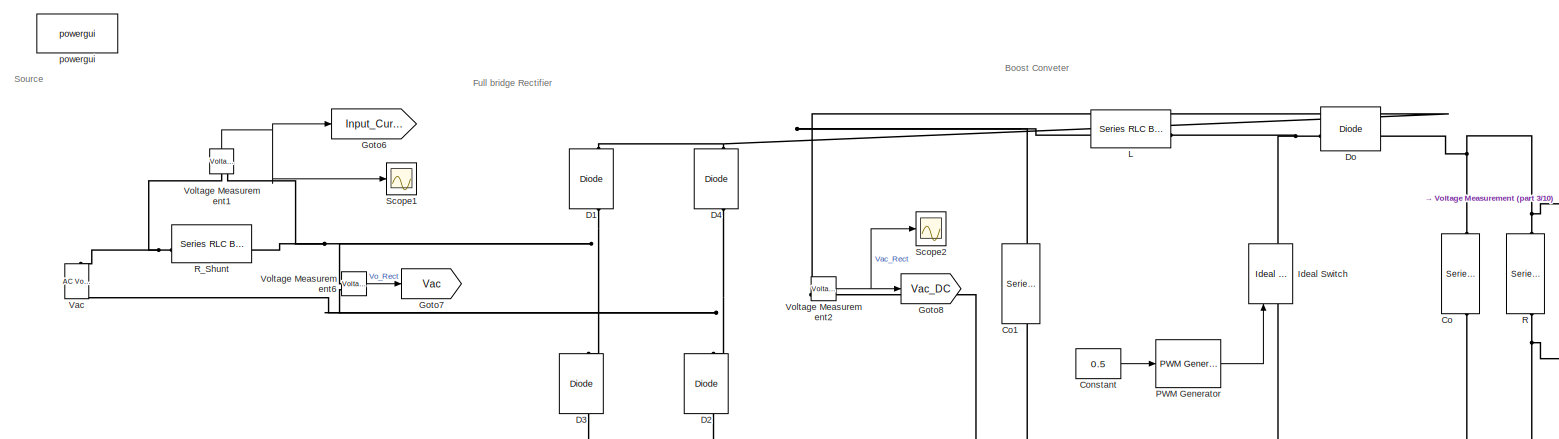
[diagram: root canvas - part 1/10, top left region]
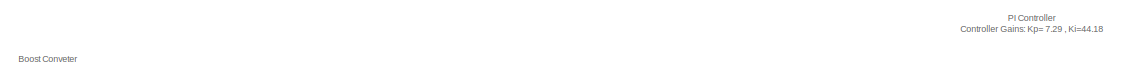
[diagram: root canvas - part 2/10, top center region]
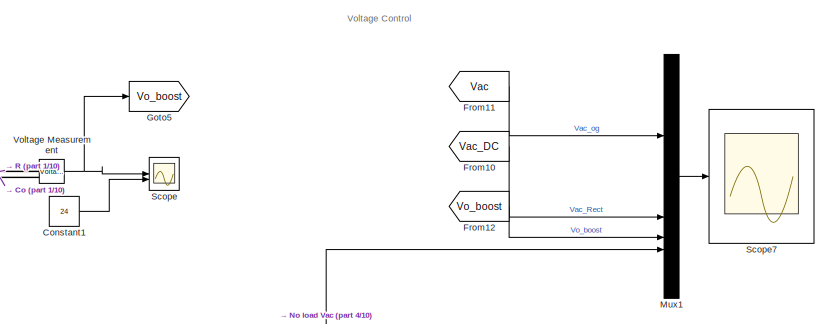
[diagram: root canvas - part 3/10, top center region]
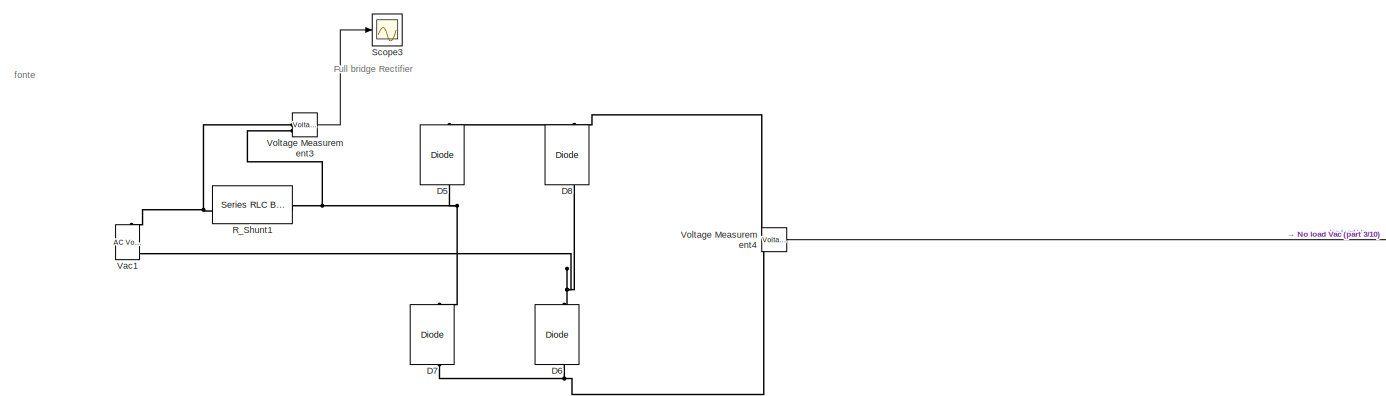
[diagram: root canvas - part 4/10, middle left region]
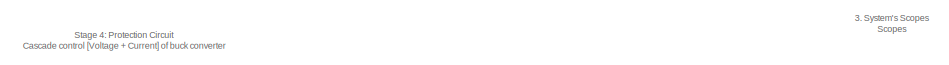
[diagram: root canvas - part 5/10, middle right region]
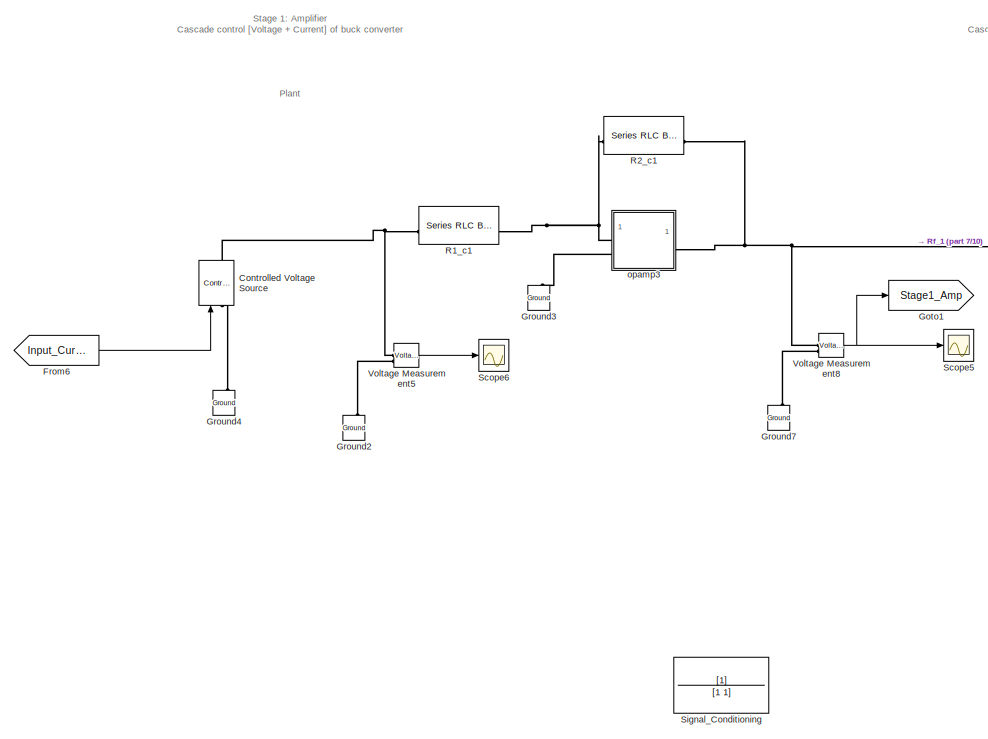
[diagram: root canvas - part 6/10, bottom left region]
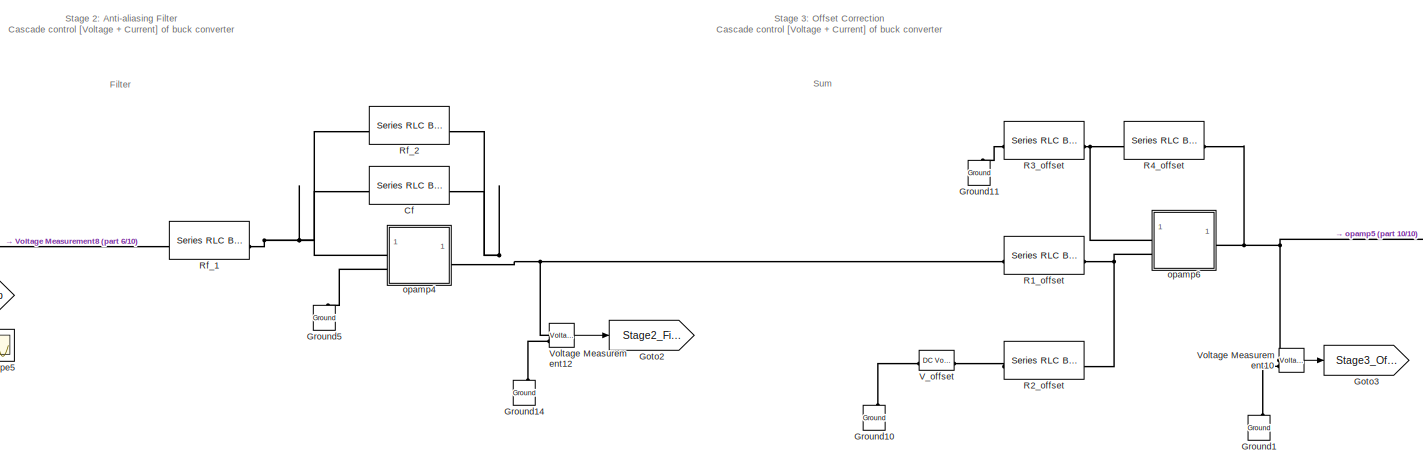
[diagram: root canvas - part 7/10, bottom center region]
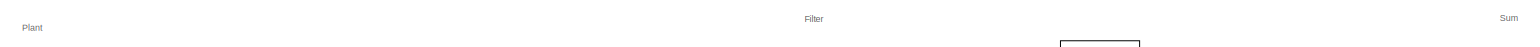
[diagram: root canvas - part 8/10, middle left region]
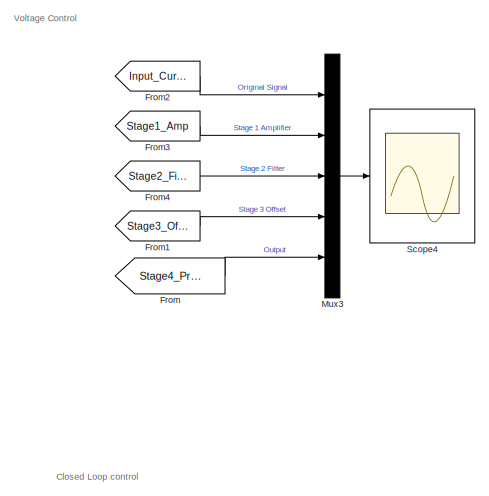
[diagram: root canvas - part 9/10, bottom right region]
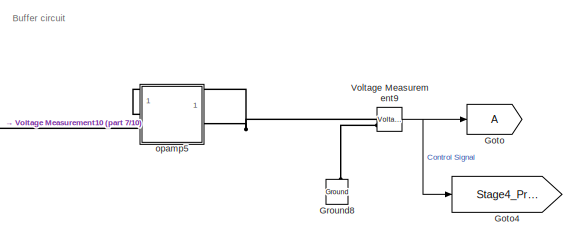
[diagram: root canvas - part 10/10, bottom right region]
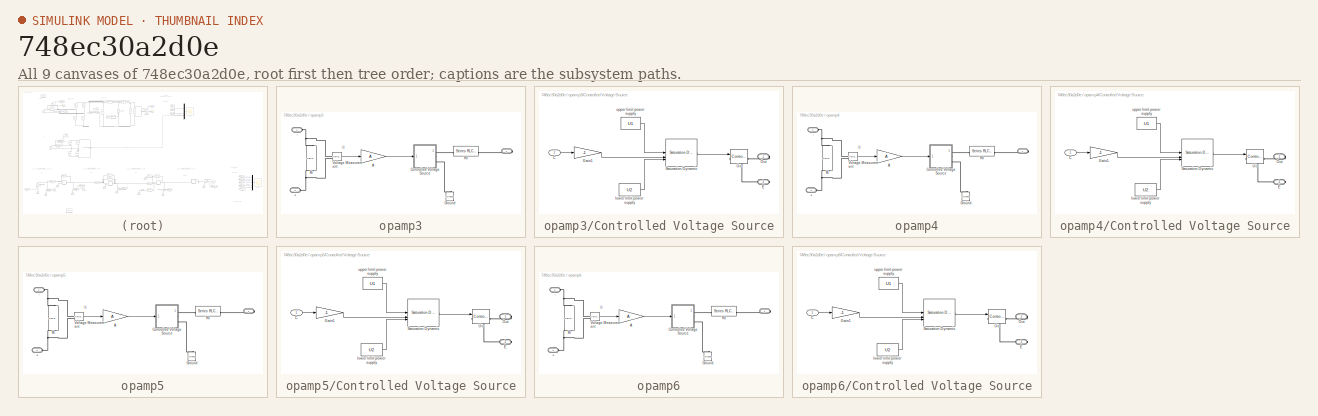
[diagram: thumbnail index - all 9 canvases of the model, root first then tree order]
MODEL slx_748ec30a2d0e
KIND model
CONFIG AbsTol = auto
CONFIG EnableMultiTasking = off
CONFIG FixedStep = 1e-6
CONFIG MaxStep = auto
CONFIG MinStep = auto
CONFIG RelTol = 1e-9
CONFIG SampleTimeConstraint = Unconstrained
CONFIG SolverName = FixedStepAuto
CONFIG StartTime = 0.0
CONFIG StopTime = 1
BLOCK [Reference] Cf  REF=spsSeriesRLCBranchLib/Series RLC Branch
  LibrarySourceBlock = sps_lib/Passives/Series RLC Branch
  SourceBlock = spsSeriesRLCBranchLib/Series RLC Branch
  SourceType = Series RLC Branch
BLOCK [Reference] Co  REF=spsSeriesRLCBranchLib/Series RLC Branch
  LibrarySourceBlock = sps_lib/Passives/Series RLC Branch
  NameLocation = left
  SourceBlock = spsSeriesRLCBranchLib/Series RLC Branch
  SourceType = Series RLC Branch
BLOCK [Reference] Co1  REF=spsSeriesRLCBranchLib/Series RLC Branch
  LibrarySourceBlock = sps_lib/Passives/Series RLC Branch
  NameLocation = left
  SourceBlock = spsSeriesRLCBranchLib/Series RLC Branch
  SourceType = Series RLC Branch
BLOCK [Constant] Constant
  Value = 0.5
BLOCK [Constant] Constant1
  Value = 24
BLOCK [Reference] Controlled Voltage Source  REF=spsControlledVoltageSourceLib/Controlled Voltage Source
  LibrarySourceBlock = sps_lib/Sources/Controlled Voltage Source
  SourceBlock = spsControlledVoltageSourceLib/Controlled Voltage Source
  SourceType = Controlled Voltage Source
BLOCK [Reference] D1  REF=spsDiodeLib/Diode
  LibrarySourceBlock = sps_lib/Power Electronics/Diode
  NameLocation = right
  SourceBlock = spsDiodeLib/Diode
  SourceType = Diode
BLOCK [Reference] D2  REF=spsDiodeLib/Diode
  LibrarySourceBlock = sps_lib/Power Electronics/Diode
  NameLocation = right
  SourceBlock = spsDiodeLib/Diode
  SourceType = Diode
BLOCK [Reference] D3  REF=spsDiodeLib/Diode
  LibrarySourceBlock = sps_lib/Power Electronics/Diode
  NameLocation = right
  SourceBlock = spsDiodeLib/Diode
  SourceType = Diode
BLOCK [Reference] D4  REF=spsDiodeLib/Diode
  LibrarySourceBlock = sps_lib/Power Electronics/Diode
  NameLocation = right
  SourceBlock = spsDiodeLib/Diode
  SourceType = Diode
BLOCK [Reference] D5  REF=spsDiodeLib/Diode
  LibrarySourceBlock = sps_lib/Power Electronics/Diode
  NameLocation = right
  SourceBlock = spsDiodeLib/Diode
  SourceType = Diode
BLOCK [Reference] D6  REF=spsDiodeLib/Diode
  LibrarySourceBlock = sps_lib/Power Electronics/Diode
  NameLocation = right
  SourceBlock = spsDiodeLib/Diode
  SourceType = Diode
BLOCK [Reference] D7  REF=spsDiodeLib/Diode
  LibrarySourceBlock = sps_lib/Power Electronics/Diode
  NameLocation = right
  SourceBlock = spsDiodeLib/Diode
  SourceType = Diode
BLOCK [Reference] D8  REF=spsDiodeLib/Diode
  LibrarySourceBlock = sps_lib/Power Electronics/Diode
  NameLocation = right
  SourceBlock = spsDiodeLib/Diode
  SourceType = Diode
BLOCK [Reference] Do  REF=spsDiodeLib/Diode
  LibrarySourceBlock = sps_lib/Power Electronics/Diode
  SourceBlock = spsDiodeLib/Diode
  SourceType = Diode
BLOCK [From] From
  GotoTag = Stage4_Protection
BLOCK [From] From1
  GotoTag = Stage3_Offset
BLOCK [From] From10
  GotoTag = Vac_DC
BLOCK [From] From11
  GotoTag = Vac
BLOCK [From] From12
  GotoTag = Vo_boost
BLOCK [From] From2
  GotoTag = Input_Current
BLOCK [From] From3
  GotoTag = Stage1_Amp
BLOCK [From] From4
  GotoTag = Stage2_Filter
BLOCK [From] From6
  GotoTag = Input_Current
BLOCK [Goto] Goto
BLOCK [Goto] Goto1
  GotoTag = Stage1_Amp
BLOCK [Goto] Goto2
  GotoTag = Stage2_Filter
BLOCK [Goto] Goto3
  GotoTag = Stage3_Offset
BLOCK [Goto] Goto4
  GotoTag = Stage4_Protection
BLOCK [Goto] Goto5
  GotoTag = Vo_boost
BLOCK [Goto] Goto6
  GotoTag = Input_Current
  NameLocation = top
BLOCK [Goto] Goto7
  GotoTag = Vac
  NameLocation = top
BLOCK [Goto] Goto8
  GotoTag = Vac_DC
  NameLocation = top
BLOCK [Reference] Ground1  REF=spsGroundLib/Ground
  LibrarySourceBlock = sps_lib/Utilities/Ground
  NameLocation = right
  SourceBlock = spsGroundLib/Ground
  SourceType = Ground
BLOCK [Reference] Ground10  REF=spsGroundLib/Ground
  LibrarySourceBlock = sps_lib/Utilities/Ground
  NameLocation = right
  SourceBlock = spsGroundLib/Ground
  SourceType = Ground
BLOCK [Reference] Ground11  REF=spsGroundLib/Ground
  LibrarySourceBlock = sps_lib/Utilities/Ground
  NameLocation = right
  SourceBlock = spsGroundLib/Ground
  SourceType = Ground
BLOCK [Reference] Ground14  REF=spsGroundLib/Ground
  LibrarySourceBlock = sps_lib/Utilities/Ground
  NameLocation = right
  SourceBlock = spsGroundLib/Ground
  SourceType = Ground
BLOCK [Reference] Ground2  REF=spsGroundLib/Ground
  LibrarySourceBlock = sps_lib/Utilities/Ground
  NameLocation = right
  SourceBlock = spsGroundLib/Ground
  SourceType = Ground
BLOCK [Reference] Ground3  REF=spsGroundLib/Ground
  LibrarySourceBlock = sps_lib/Utilities/Ground
  NameLocation = right
  SourceBlock = spsGroundLib/Ground
  SourceType = Ground
BLOCK [Reference] Ground4  REF=spsGroundLib/Ground
  LibrarySourceBlock = sps_lib/Utilities/Ground
  NameLocation = right
  SourceBlock = spsGroundLib/Ground
  SourceType = Ground
BLOCK [Reference] Ground5  REF=spsGroundLib/Ground
  LibrarySourceBlock = sps_lib/Utilities/Ground
  NameLocation = right
  SourceBlock = spsGroundLib/Ground
  SourceType = Ground
BLOCK [Reference] Ground7  REF=spsGroundLib/Ground
  LibrarySourceBlock = sps_lib/Utilities/Ground
  NameLocation = right
  SourceBlock = spsGroundLib/Ground
  SourceType = Ground
BLOCK [Reference] Ground8  REF=spsGroundLib/Ground
  LibrarySourceBlock = sps_lib/Utilities/Ground
  NameLocation = right
  SourceBlock = spsGroundLib/Ground
  SourceType = Ground
BLOCK [Reference] Ideal Switch  REF=spsIdealSwitchLib/Ideal Switch
  LibrarySourceBlock = sps_lib/Power Electronics/Ideal Switch
  NameLocation = right
  SourceBlock = spsIdealSwitchLib/Ideal Switch
  SourceType = Ideal Switch
BLOCK [Reference] L  REF=spsSeriesRLCBranchLib/Series RLC Branch
  LibrarySourceBlock = sps_lib/Passives/Series RLC Branch
  SourceBlock = spsSeriesRLCBranchLib/Series RLC Branch
  SourceType = Series RLC Branch
BLOCK [Mux] Mux1
  DisplayOption = bar
BLOCK [Mux] Mux3
  DisplayOption = bar
  Inputs = 5
BLOCK [Reference] PWM Generator  REF=eePwmGenerator/PWM Generator
  LibrarySourceBlock = ee_sl_lib/Pulse Width\nModulation/PWM Generator
  SourceBlock = eePwmGenerator/PWM Generator
  SourceType = PWM Generator
BLOCK [Reference] R  REF=spsSeriesRLCBranchLib/Series RLC Branch
  LibrarySourceBlock = sps_lib/Passives/Series RLC Branch
  NameLocation = right
  SourceBlock = spsSeriesRLCBranchLib/Series RLC Branch
  SourceType = Series RLC Branch
BLOCK [Reference] R1_c1  REF=spsSeriesRLCBranchLib/Series RLC Branch
  LibrarySourceBlock = sps_lib/Passives/Series RLC Branch
  SourceBlock = spsSeriesRLCBranchLib/Series RLC Branch
  SourceType = Series RLC Branch
BLOCK [Reference] R1_offset  REF=spsSeriesRLCBranchLib/Series RLC Branch
  LibrarySourceBlock = sps_lib/Passives/Series RLC Branch
  SourceBlock = spsSeriesRLCBranchLib/Series RLC Branch
  SourceType = Series RLC Branch
BLOCK [Reference] R2_c1  REF=spsSeriesRLCBranchLib/Series RLC Branch
  LibrarySourceBlock = sps_lib/Passives/Series RLC Branch
  SourceBlock = spsSeriesRLCBranchLib/Series RLC Branch
  SourceType = Series RLC Branch
BLOCK [Reference] R2_offset  REF=spsSeriesRLCBranchLib/Series RLC Branch
  LibrarySourceBlock = sps_lib/Passives/Series RLC Branch
  SourceBlock = spsSeriesRLCBranchLib/Series RLC Branch
  SourceType = Series RLC Branch
BLOCK [Reference] R3_offset  REF=spsSeriesRLCBranchLib/Series RLC Branch
  LibrarySourceBlock = sps_lib/Passives/Series RLC Branch
  SourceBlock = spsSeriesRLCBranchLib/Series RLC Branch
  SourceType = Series RLC Branch
BLOCK [Reference] R4_offset  REF=spsSeriesRLCBranchLib/Series RLC Branch
  LibrarySourceBlock = sps_lib/Passives/Series RLC Branch
  SourceBlock = spsSeriesRLCBranchLib/Series RLC Branch
  SourceType = Series RLC Branch
BLOCK [Reference] R_Shunt  REF=spsSeriesRLCBranchLib/Series RLC Branch
  LibrarySourceBlock = sps_lib/Passives/Series RLC Branch
  NameLocation = top
  SourceBlock = spsSeriesRLCBranchLib/Series RLC Branch
  SourceType = Series RLC Branch
BLOCK [Reference] R_Shunt1  REF=spsSeriesRLCBranchLib/Series RLC Branch
  LibrarySourceBlock = sps_lib/Passives/Series RLC Branch
  NameLocation = top
  SourceBlock = spsSeriesRLCBranchLib/Series RLC Branch
  SourceType = Series RLC Branch
BLOCK [Reference] Rf_1  REF=spsSeriesRLCBranchLib/Series RLC Branch
  LibrarySourceBlock = sps_lib/Passives/Series RLC Branch
  SourceBlock = spsSeriesRLCBranchLib/Series RLC Branch
  SourceType = Series RLC Branch
BLOCK [Reference] Rf_2  REF=spsSeriesRLCBranchLib/Series RLC Branch
  LibrarySourceBlock = sps_lib/Passives/Series RLC Branch
  SourceBlock = spsSeriesRLCBranchLib/Series RLC Branch
  SourceType = Series RLC Branch
BLOCK [Scope] Scope
  Floating = off
  NumInputPorts = 2
  ScopeSpecificationString = Simulink.scopes.TimeScopeBlockCfg('CurrentConfiguration', extmgr.ConfigurationSet(extmgr.Configuration('Core','General UI',true),extmgr.Configuration('Core','Source UI',true),extmgr.Configuration('Sources','WiredSimulink',true),extmgr.Configuration('Visuals','Time Domain',true,'SerializedDisplays',{struct('MinYLimReal','-3.00000','MaxYLimReal','27.00000','YLabelReal','','MinYLimMag','0.00000','Max...<+1428ch>
BLOCK [Scope] Scope1
  Floating = off
  NumInputPorts = 1
  ScopeSpecificationString = Simulink.scopes.TimeScopeBlockCfg('CurrentConfiguration', extmgr.ConfigurationSet(extmgr.Configuration('Core','General UI',true),extmgr.Configuration('Core','Source UI',true),extmgr.Configuration('Sources','WiredSimulink',true,'DataLoggingVariableName','ScopeData1'),extmgr.Configuration('Visuals','Time Domain',true,'SerializedDisplays',{struct('MinYLimReal','9.72229','MaxYLimReal','12.26128','YLab...<+1891ch>
BLOCK [Scope] Scope2
  Floating = off
  NumInputPorts = 1
  ScopeSpecificationString = Simulink.scopes.TimeScopeBlockCfg('CurrentConfiguration', extmgr.ConfigurationSet(extmgr.Configuration('Core','General UI',true),extmgr.Configuration('Core','Source UI',true),extmgr.Configuration('Sources','WiredSimulink',true,'DataLoggingVariableName','ScopeData2'),extmgr.Configuration('Visuals','Time Domain',true,'SerializedDisplays',{struct('MinYLimReal','-1.49502','MaxYLimReal','13.45518','YLa...<+1763ch>
BLOCK [Scope] Scope3
  Floating = off
  NumInputPorts = 1
  ScopeSpecificationString = Simulink.scopes.TimeScopeBlockCfg('CurrentConfiguration', extmgr.ConfigurationSet(extmgr.Configuration('Core','General UI',true),extmgr.Configuration('Core','Source UI',true),extmgr.Configuration('Sources','WiredSimulink',true,'DataLoggingVariableName','ScopeData3'),extmgr.Configuration('Visuals','Time Domain',true,'SerializedDisplays',{struct('MinYLimReal','-0.00015','MaxYLimReal','0.00026','YLab...<+1452ch>
BLOCK [Scope] Scope4
  Floating = off
  NumInputPorts = 1
  ScopeSpecificationString = Simulink.scopes.TimeScopeBlockCfg('CurrentConfiguration', extmgr.ConfigurationSet(extmgr.Configuration('Core','General UI',true),extmgr.Configuration('Core','Source UI',true),extmgr.Configuration('Sources','WiredSimulink',true,'DataLoggingVariableName','ScopeData4'),extmgr.Configuration('Visuals','Time Domain',true,'SerializedDisplays',{struct('MinYLimReal','-13.6983','MaxYLimReal','14.26318','YLa...<+1964ch>
BLOCK [Scope] Scope5
  Floating = off
  NumInputPorts = 1
  ScopeSpecificationString = Simulink.scopes.TimeScopeBlockCfg('CurrentConfiguration', extmgr.ConfigurationSet(extmgr.Configuration('Core','General UI',true),extmgr.Configuration('Core','Source UI',true),extmgr.Configuration('Sources','WiredSimulink',true,'DataLoggingVariableName','ScopeData6'),extmgr.Configuration('Visuals','Time Domain',true,'SerializedDisplays',{struct('MinYLimReal','-9.2059','MaxYLimReal','0.39154','YLabe...<+1763ch>
BLOCK [Scope] Scope6
  Floating = off
  NumInputPorts = 1
  ScopeSpecificationString = Simulink.scopes.TimeScopeBlockCfg('CurrentConfiguration', extmgr.ConfigurationSet(extmgr.Configuration('Core','General UI',true),extmgr.Configuration('Core','Source UI',true),extmgr.Configuration('Sources','WiredSimulink',true,'DataLoggingVariableName','ScopeData5'),extmgr.Configuration('Visuals','Time Domain',true,'SerializedDisplays',{struct('MinYLimReal','-9.2059','MaxYLimReal','0.39154','YLabe...<+1763ch>
BLOCK [Scope] Scope7
  Floating = off
  NumInputPorts = 1
  ScopeSpecificationString = Simulink.scopes.TimeScopeBlockCfg('CurrentConfiguration', extmgr.ConfigurationSet(extmgr.Configuration('Core','General UI',true),extmgr.Configuration('Core','Source UI',true),extmgr.Configuration('Sources','WiredSimulink',true,'DataLoggingVariableName','ScopeData7'),extmgr.Configuration('Visuals','Time Domain',true,'SerializedDisplays',{struct('MinYLimReal','-8.16245','MaxYLimReal','14.24027','YLa...<+1932ch>
BLOCK [TransferFcn] Signal_Conditioning
  Denominator = [1 1]
BLOCK [Reference] V_offset  REF=spsDCVoltageSourceLib/DC Voltage Source
  LibrarySourceBlock = sps_lib/Sources/DC Voltage Source
  SourceBlock = spsDCVoltageSourceLib/DC Voltage Source
  SourceType = DC Voltage Source
BLOCK [Reference] Vac  REF=spsACVoltageSourceLib/AC Voltage Source
  LibrarySourceBlock = sps_lib/Sources/AC Voltage Source
  NameLocation = left
  SourceBlock = spsACVoltageSourceLib/AC Voltage Source
  SourceType = AC Voltage Source
BLOCK [Reference] Vac1  REF=spsACVoltageSourceLib/AC Voltage Source
  LibrarySourceBlock = sps_lib/Sources/AC Voltage Source
  NameLocation = left
  SourceBlock = spsACVoltageSourceLib/AC Voltage Source
  SourceType = AC Voltage Source
BLOCK [Reference] Voltage Measurement  REF=spsVoltageMeasurementLib/Voltage Measurement
  LibrarySourceBlock = sps_lib/Sensors and Measurements/Voltage Measurement
  SourceBlock = spsVoltageMeasurementLib/Voltage Measurement
  SourceType = Voltage Measurement
  UserDataPersistent = on
BLOCK [Reference] Voltage Measurement1  REF=spsVoltageMeasurementLib/Voltage Measurement
  LibrarySourceBlock = sps_lib/Sensors and Measurements/Voltage Measurement
  NameLocation = right
  SourceBlock = spsVoltageMeasurementLib/Voltage Measurement
  SourceType = Voltage Measurement
  UserDataPersistent = on
BLOCK [Reference] Voltage Measurement10  REF=spsVoltageMeasurementLib/Voltage Measurement
  LibrarySourceBlock = sps_lib/Sensors and Measurements/Voltage Measurement
  SourceBlock = spsVoltageMeasurementLib/Voltage Measurement
  SourceType = Voltage Measurement
  UserDataPersistent = on
BLOCK [Reference] Voltage Measurement12  REF=spsVoltageMeasurementLib/Voltage Measurement
  LibrarySourceBlock = sps_lib/Sensors and Measurements/Voltage Measurement
  SourceBlock = spsVoltageMeasurementLib/Voltage Measurement
  SourceType = Voltage Measurement
  UserDataPersistent = on
BLOCK [Reference] Voltage Measurement2  REF=spsVoltageMeasurementLib/Voltage Measurement
  LibrarySourceBlock = sps_lib/Sensors and Measurements/Voltage Measurement
  SourceBlock = spsVoltageMeasurementLib/Voltage Measurement
  SourceType = Voltage Measurement
  UserDataPersistent = on
BLOCK [Reference] Voltage Measurement3  REF=spsVoltageMeasurementLib/Voltage Measurement
  LibrarySourceBlock = sps_lib/Sensors and Measurements/Voltage Measurement
  SourceBlock = spsVoltageMeasurementLib/Voltage Measurement
  SourceType = Voltage Measurement
  UserDataPersistent = on
BLOCK [Reference] Voltage Measurement4  REF=spsVoltageMeasurementLib/Voltage Measurement
  LibrarySourceBlock = sps_lib/Sensors and Measurements/Voltage Measurement
  SourceBlock = spsVoltageMeasurementLib/Voltage Measurement
  SourceType = Voltage Measurement
  UserDataPersistent = on
BLOCK [Reference] Voltage Measurement5  REF=spsVoltageMeasurementLib/Voltage Measurement
  LibrarySourceBlock = sps_lib/Sensors and Measurements/Voltage Measurement
  SourceBlock = spsVoltageMeasurementLib/Voltage Measurement
  SourceType = Voltage Measurement
  UserDataPersistent = on
BLOCK [Reference] Voltage Measurement6  REF=spsVoltageMeasurementLib/Voltage Measurement
  LibrarySourceBlock = sps_lib/Sensors and Measurements/Voltage Measurement
  SourceBlock = spsVoltageMeasurementLib/Voltage Measurement
  SourceType = Voltage Measurement
  UserDataPersistent = on
BLOCK [Reference] Voltage Measurement8  REF=spsVoltageMeasurementLib/Voltage Measurement
  LibrarySourceBlock = sps_lib/Sensors and Measurements/Voltage Measurement
  SourceBlock = spsVoltageMeasurementLib/Voltage Measurement
  SourceType = Voltage Measurement
  UserDataPersistent = on
BLOCK [Reference] Voltage Measurement9  REF=spsVoltageMeasurementLib/Voltage Measurement
  LibrarySourceBlock = sps_lib/Sensors and Measurements/Voltage Measurement
  SourceBlock = spsVoltageMeasurementLib/Voltage Measurement
  SourceType = Voltage Measurement
  UserDataPersistent = on
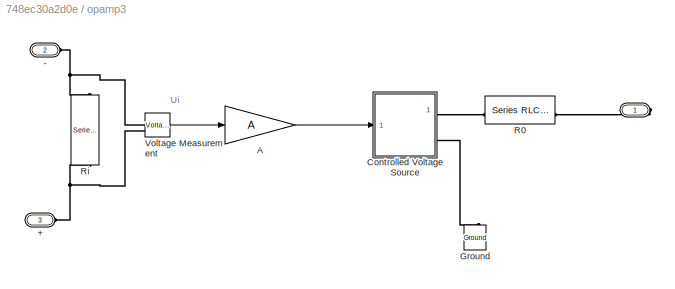
BLOCK [SubSystem] opamp3
BLOCK [PMIOPort] opamp3/ 
  Side = Right
BLOCK [PMIOPort] opamp3/+
  NameLocation = top
  Port = 3
  Side = Left
BLOCK [PMIOPort] opamp3/-
  NameLocation = top
  Port = 2
  Side = Left
BLOCK [Gain] opamp3/A
  Gain = A
BLOCK [SubSystem] opamp3/Controlled Voltage Source
BLOCK [Inport] opamp3/Controlled Voltage Source/C
BLOCK [PMIOPort] opamp3/Controlled Voltage Source/E
  Port = 2
  Side = Right
BLOCK [Gain] opamp3/Controlled Voltage Source/Gain1
  Gain = -1
BLOCK [PMIOPort] opamp3/Controlled Voltage Source/Out
  Side = Right
BLOCK [Reference] opamp3/Controlled Voltage Source/Saturation Dynamic  REF=simulink/Discontinuities/Saturation
Dynamic
  SourceBlock = simulink/Discontinuities/Saturation\nDynamic
  SourceType = Saturation Dynamic
BLOCK [Reference] opamp3/Controlled Voltage Source/Uo  REF=spsControlledVoltageSourceLib/Controlled Voltage Source
  LibrarySourceBlock = sps_lib/Sources/Controlled Voltage Source
  SourceBlock = spsControlledVoltageSourceLib/Controlled Voltage Source
  SourceType = Controlled Voltage Source
BLOCK [Constant] opamp3/Controlled Voltage Source/lower limit power supply
  Value = U2
BLOCK [Constant] opamp3/Controlled Voltage Source/upper limit power supply
  NameLocation = top
  Value = U1
BLOCK [Reference] opamp3/Ground  REF=spsGroundLib/Ground
  LibrarySourceBlock = sps_lib/Utilities/Ground
  NameLocation = right
  SourceBlock = spsGroundLib/Ground
  SourceType = Ground
BLOCK [Reference] opamp3/R0  REF=spsSeriesRLCBranchLib/Series RLC Branch
  LibrarySourceBlock = sps_lib/Passives/Series RLC Branch
  NameLocation = top
  SourceBlock = spsSeriesRLCBranchLib/Series RLC Branch
  SourceType = Series RLC Branch
BLOCK [Reference] opamp3/Ri  REF=spsSeriesRLCBranchLib/Series RLC Branch
  LibrarySourceBlock = sps_lib/Passives/Series RLC Branch
  NameLocation = left
  SourceBlock = spsSeriesRLCBranchLib/Series RLC Branch
  SourceType = Series RLC Branch
BLOCK [Reference] opamp3/Voltage Measurement  REF=spsVoltageMeasurementLib/Voltage Measurement
  LibrarySourceBlock = sps_lib/Sensors and Measurements/Voltage Measurement
  SourceBlock = spsVoltageMeasurementLib/Voltage Measurement
  SourceType = Voltage Measurement
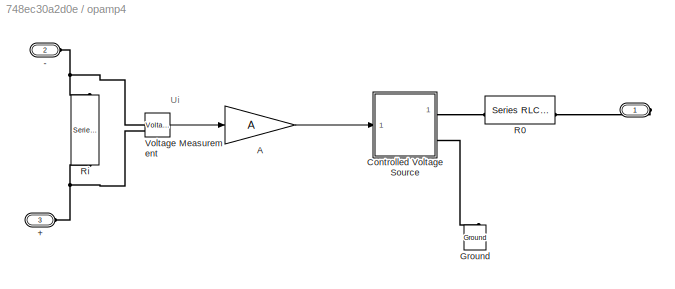
BLOCK [SubSystem] opamp4
BLOCK [PMIOPort] opamp4/ 
  Side = Right
BLOCK [PMIOPort] opamp4/+
  NameLocation = top
  Port = 3
  Side = Left
BLOCK [PMIOPort] opamp4/-
  NameLocation = top
  Port = 2
  Side = Left
BLOCK [Gain] opamp4/A
  Gain = A
BLOCK [SubSystem] opamp4/Controlled Voltage Source
BLOCK [Inport] opamp4/Controlled Voltage Source/C
BLOCK [PMIOPort] opamp4/Controlled Voltage Source/E
  Port = 2
  Side = Right
BLOCK [Gain] opamp4/Controlled Voltage Source/Gain1
  Gain = -1
BLOCK [PMIOPort] opamp4/Controlled Voltage Source/Out
  Side = Right
BLOCK [Reference] opamp4/Controlled Voltage Source/Saturation Dynamic  REF=simulink/Discontinuities/Saturation
Dynamic
  SourceBlock = simulink/Discontinuities/Saturation\nDynamic
  SourceType = Saturation Dynamic
BLOCK [Reference] opamp4/Controlled Voltage Source/Uo  REF=spsControlledVoltageSourceLib/Controlled Voltage Source
  LibrarySourceBlock = sps_lib/Sources/Controlled Voltage Source
  SourceBlock = spsControlledVoltageSourceLib/Controlled Voltage Source
  SourceType = Controlled Voltage Source
BLOCK [Constant] opamp4/Controlled Voltage Source/lower limit power supply
  Value = U2
BLOCK [Constant] opamp4/Controlled Voltage Source/upper limit power supply
  NameLocation = top
  Value = U1
BLOCK [Reference] opamp4/Ground  REF=spsGroundLib/Ground
  LibrarySourceBlock = sps_lib/Utilities/Ground
  NameLocation = right
  SourceBlock = spsGroundLib/Ground
  SourceType = Ground
BLOCK [Reference] opamp4/R0  REF=spsSeriesRLCBranchLib/Series RLC Branch
  LibrarySourceBlock = sps_lib/Passives/Series RLC Branch
  NameLocation = top
  SourceBlock = spsSeriesRLCBranchLib/Series RLC Branch
  SourceType = Series RLC Branch
BLOCK [Reference] opamp4/Ri  REF=spsSeriesRLCBranchLib/Series RLC Branch
  LibrarySourceBlock = sps_lib/Passives/Series RLC Branch
  NameLocation = left
  SourceBlock = spsSeriesRLCBranchLib/Series RLC Branch
  SourceType = Series RLC Branch
BLOCK [Reference] opamp4/Voltage Measurement  REF=spsVoltageMeasurementLib/Voltage Measurement
  LibrarySourceBlock = sps_lib/Sensors and Measurements/Voltage Measurement
  SourceBlock = spsVoltageMeasurementLib/Voltage Measurement
  SourceType = Voltage Measurement
BLOCK [SubSystem] opamp5
BLOCK [PMIOPort] opamp5/ 
  Side = Right
BLOCK [PMIOPort] opamp5/+
  NameLocation = top
  Port = 3
  Side = Left
BLOCK [PMIOPort] opamp5/-
  NameLocation = top
  Port = 2
  Side = Left
BLOCK [Gain] opamp5/A
  Gain = A
BLOCK [SubSystem] opamp5/Controlled Voltage Source
BLOCK [Inport] opamp5/Controlled Voltage Source/C
BLOCK [PMIOPort] opamp5/Controlled Voltage Source/E
  Port = 2
  Side = Right
BLOCK [Gain] opamp5/Controlled Voltage Source/Gain1
  Gain = -1
BLOCK [PMIOPort] opamp5/Controlled Voltage Source/Out
  Side = Right
BLOCK [Reference] opamp5/Controlled Voltage Source/Saturation Dynamic  REF=simulink/Discontinuities/Saturation
Dynamic
  SourceBlock = simulink/Discontinuities/Saturation\nDynamic
  SourceType = Saturation Dynamic
BLOCK [Reference] opamp5/Controlled Voltage Source/Uo  REF=spsControlledVoltageSourceLib/Controlled Voltage Source
  LibrarySourceBlock = sps_lib/Sources/Controlled Voltage Source
  SourceBlock = spsControlledVoltageSourceLib/Controlled Voltage Source
  SourceType = Controlled Voltage Source
BLOCK [Constant] opamp5/Controlled Voltage Source/lower limit power supply
  Value = U2
BLOCK [Constant] opamp5/Controlled Voltage Source/upper limit power supply
  NameLocation = top
  Value = U1
BLOCK [Reference] opamp5/Ground  REF=spsGroundLib/Ground
  LibrarySourceBlock = sps_lib/Utilities/Ground
  NameLocation = right
  SourceBlock = spsGroundLib/Ground
  SourceType = Ground
BLOCK [Reference] opamp5/R0  REF=spsSeriesRLCBranchLib/Series RLC Branch
  LibrarySourceBlock = sps_lib/Passives/Series RLC Branch
  NameLocation = top
  SourceBlock = spsSeriesRLCBranchLib/Series RLC Branch
  SourceType = Series RLC Branch
BLOCK [Reference] opamp5/Ri  REF=spsSeriesRLCBranchLib/Series RLC Branch
  LibrarySourceBlock = sps_lib/Passives/Series RLC Branch
  NameLocation = left
  SourceBlock = spsSeriesRLCBranchLib/Series RLC Branch
  SourceType = Series RLC Branch
BLOCK [Reference] opamp5/Voltage Measurement  REF=spsVoltageMeasurementLib/Voltage Measurement
  LibrarySourceBlock = sps_lib/Sensors and Measurements/Voltage Measurement
  SourceBlock = spsVoltageMeasurementLib/Voltage Measurement
  SourceType = Voltage Measurement
BLOCK [SubSystem] opamp6
BLOCK [PMIOPort] opamp6/ 
  Side = Right
BLOCK [PMIOPort] opamp6/+
  NameLocation = top
  Port = 3
  Side = Left
BLOCK [PMIOPort] opamp6/-
  NameLocation = top
  Port = 2
  Side = Left
BLOCK [Gain] opamp6/A
  Gain = A
BLOCK [SubSystem] opamp6/Controlled Voltage Source
BLOCK [Inport] opamp6/Controlled Voltage Source/C
BLOCK [PMIOPort] opamp6/Controlled Voltage Source/E
  Port = 2
  Side = Right
BLOCK [Gain] opamp6/Controlled Voltage Source/Gain1
  Gain = -1
BLOCK [PMIOPort] opamp6/Controlled Voltage Source/Out
  Side = Right
BLOCK [Reference] opamp6/Controlled Voltage Source/Saturation Dynamic  REF=simulink/Discontinuities/Saturation
Dynamic
  SourceBlock = simulink/Discontinuities/Saturation\nDynamic
  SourceType = Saturation Dynamic
BLOCK [Reference] opamp6/Controlled Voltage Source/Uo  REF=spsControlledVoltageSourceLib/Controlled Voltage Source
  LibrarySourceBlock = sps_lib/Sources/Controlled Voltage Source
  SourceBlock = spsControlledVoltageSourceLib/Controlled Voltage Source
  SourceType = Controlled Voltage Source
BLOCK [Constant] opamp6/Controlled Voltage Source/lower limit power supply
  Value = U2
BLOCK [Constant] opamp6/Controlled Voltage Source/upper limit power supply
  NameLocation = top
  Value = U1
BLOCK [Reference] opamp6/Ground  REF=spsGroundLib/Ground
  LibrarySourceBlock = sps_lib/Utilities/Ground
  NameLocation = right
  SourceBlock = spsGroundLib/Ground
  SourceType = Ground
BLOCK [Reference] opamp6/R0  REF=spsSeriesRLCBranchLib/Series RLC Branch
  LibrarySourceBlock = sps_lib/Passives/Series RLC Branch
  NameLocation = top
  SourceBlock = spsSeriesRLCBranchLib/Series RLC Branch
  SourceType = Series RLC Branch
BLOCK [Reference] opamp6/Ri  REF=spsSeriesRLCBranchLib/Series RLC Branch
  LibrarySourceBlock = sps_lib/Passives/Series RLC Branch
  NameLocation = left
  SourceBlock = spsSeriesRLCBranchLib/Series RLC Branch
  SourceType = Series RLC Branch
BLOCK [Reference] opamp6/Voltage Measurement  REF=spsVoltageMeasurementLib/Voltage Measurement
  LibrarySourceBlock = sps_lib/Sensors and Measurements/Voltage Measurement
  SourceBlock = spsVoltageMeasurementLib/Voltage Measurement
  SourceType = Voltage Measurement
BLOCK [Reference] powergui  REF=sps_lib/powergui
  LibrarySourceBlock = sps_lib/powergui
  Priority = 1
  SourceBlock = sps_lib/powergui
  SourceType = PSB option menu block
ANNOTATION (root): 3. System's Scopes Scopes
ANNOTATION (root): PI Controller Controller Gains: Kp= 7.29 , Ki=44.18
ANNOTATION (root): Stage 1: Amplifier Cascade control [Voltage + Current] of buck converter
ANNOTATION (root): Stage 2: Anti-aliasing Filter Cascade control [Voltage + Current] of buck converter
ANNOTATION (root): Stage 3: Offset Correction Cascade control [Voltage + Current] of buck converter
ANNOTATION (root): Stage 4: Protection Circuit Cascade control [Voltage + Current] of buck converter
ANNOTATION (root): Boost Conveter
ANNOTATION (root): Buffer circuit
ANNOTATION (root): Closed Loop control
ANNOTATION (root): Filter
ANNOTATION (root): Full bridge Rectifier
ANNOTATION (root): Plant
ANNOTATION (root): Source
ANNOTATION (root): Sum
ANNOTATION (root): Voltage Control
ANNOTATION (root): fonte
ANNOTATION opamp3: Ui
ANNOTATION opamp4: Ui
ANNOTATION opamp5: Ui
ANNOTATION opamp6: Ui
LINE Constant1:1 -> Scope:2
LINE Constant:1 -> PWM Generator:1
LINE From10:1 -> Mux1:2
LINE From11:1 -> Mux1:1
LINE From12:1 -> Mux1:3
LINE From1:1 -> Mux3:4
LINE From2:1 -> Mux3:1
LINE From3:1 -> Mux3:2
LINE From4:1 -> Mux3:3
LINE From6:1 -> Controlled Voltage Source:1
LINE From:1 -> Mux3:5
LINE Mux1:1 -> Scope7:1
LINE Mux3:1 -> Scope4:1
LINE PWM Generator:1 -> Ideal Switch:1
LINE Voltage Measurement10:1 -> Goto3:1
LINE Voltage Measurement12:1 -> Goto2:1
NET Voltage Measurement1:1 -> Goto6:1, Scope1:1
NET Voltage Measurement2:1 -> Goto8:1, Scope2:1
LINE Voltage Measurement3:1 -> Scope3:1
LINE Voltage Measurement4:1 -> Mux1:4
LINE Voltage Measurement5:1 -> Scope6:1
LINE Voltage Measurement6:1 -> Goto7:1
NET Voltage Measurement8:1 -> Goto1:1, Scope5:1
NET Voltage Measurement9:1 -> Goto4:1, Goto:1
NET Voltage Measurement:1 -> Goto5:1, Scope:1
LINE opamp3/A:1 -> opamp3/Controlled Voltage Source:1
LINE opamp3/Controlled Voltage Source/C:1 -> opamp3/Controlled Voltage Source/Gain1:1
LINE opamp3/Controlled Voltage Source/Gain1:1 -> opamp3/Controlled Voltage Source/Saturation Dynamic:2
LINE opamp3/Controlled Voltage Source/Saturation Dynamic:1 -> opamp3/Controlled Voltage Source/Uo:1
LINE opamp3/Controlled Voltage Source/lower limit power supply:1 -> opamp3/Controlled Voltage Source/Saturation Dynamic:3
LINE opamp3/Controlled Voltage Source/upper limit power supply:1 -> opamp3/Controlled Voltage Source/Saturation Dynamic:1
LINE opamp3/Voltage Measurement:1 -> opamp3/A:1
LINE opamp4/A:1 -> opamp4/Controlled Voltage Source:1
LINE opamp4/Controlled Voltage Source/C:1 -> opamp4/Controlled Voltage Source/Gain1:1
LINE opamp4/Controlled Voltage Source/Gain1:1 -> opamp4/Controlled Voltage Source/Saturation Dynamic:2
LINE opamp4/Controlled Voltage Source/Saturation Dynamic:1 -> opamp4/Controlled Voltage Source/Uo:1
LINE opamp4/Controlled Voltage Source/lower limit power supply:1 -> opamp4/Controlled Voltage Source/Saturation Dynamic:3
LINE opamp4/Controlled Voltage Source/upper limit power supply:1 -> opamp4/Controlled Voltage Source/Saturation Dynamic:1
LINE opamp4/Voltage Measurement:1 -> opamp4/A:1
LINE opamp5/A:1 -> opamp5/Controlled Voltage Source:1
LINE opamp5/Controlled Voltage Source/C:1 -> opamp5/Controlled Voltage Source/Gain1:1
LINE opamp5/Controlled Voltage Source/Gain1:1 -> opamp5/Controlled Voltage Source/Saturation Dynamic:2
LINE opamp5/Controlled Voltage Source/Saturation Dynamic:1 -> opamp5/Controlled Voltage Source/Uo:1
LINE opamp5/Controlled Voltage Source/lower limit power supply:1 -> opamp5/Controlled Voltage Source/Saturation Dynamic:3
LINE opamp5/Controlled Voltage Source/upper limit power supply:1 -> opamp5/Controlled Voltage Source/Saturation Dynamic:1
LINE opamp5/Voltage Measurement:1 -> opamp5/A:1
LINE opamp6/A:1 -> opamp6/Controlled Voltage Source:1
LINE opamp6/Controlled Voltage Source/C:1 -> opamp6/Controlled Voltage Source/Gain1:1
LINE opamp6/Controlled Voltage Source/Gain1:1 -> opamp6/Controlled Voltage Source/Saturation Dynamic:2
LINE opamp6/Controlled Voltage Source/Saturation Dynamic:1 -> opamp6/Controlled Voltage Source/Uo:1
LINE opamp6/Controlled Voltage Source/lower limit power supply:1 -> opamp6/Controlled Voltage Source/Saturation Dynamic:3
LINE opamp6/Controlled Voltage Source/upper limit power supply:1 -> opamp6/Controlled Voltage Source/Saturation Dynamic:1
LINE opamp6/Voltage Measurement:1 -> opamp6/A:1
PNET net1: Cf:LConn1 -- Rf_1:RConn1 -- Rf_2:LConn1 -- opamp4:LConn1
PNET net2: Cf:RConn1 -- R1_offset:LConn1 -- Rf_2:RConn1 -- Voltage Measurement12:LConn1 -- opamp4:RConn1
PNET net3: Co1:LConn1 -- D1:RConn1 -- D4:RConn1 -- L:LConn1 -- Voltage Measurement2:LConn1
PNET net4: Co1:RConn1 -- Co:RConn1 -- D2:LConn1 -- D3:LConn1 -- Ideal Switch:LConn1 -- R:LConn1 -- Voltage Measurement2:LConn2 -- Voltage Measurement:LConn2
PNET net5: Co:LConn1 -- Do:RConn1 -- R:RConn1 -- Voltage Measurement:LConn1
PLINE Controlled Voltage Source:LConn1 -- Ground4:LConn1
PNET net6: Controlled Voltage Source:RConn1 -- R1_c1:LConn1 -- Voltage Measurement5:LConn1
PNET net7: D1:LConn1 -- D3:RConn1 -- R_Shunt:RConn1 -- Voltage Measurement1:LConn2 -- Voltage Measurement6:LConn1
PNET net8: D2:RConn1 -- D4:LConn1 -- Vac:LConn1 -- Voltage Measurement6:LConn2
PNET net9: D5:LConn1 -- D7:RConn1 -- R_Shunt1:RConn1 -- Voltage Measurement3:LConn2
PNET net10: D5:RConn1 -- D8:RConn1 -- Voltage Measurement4:LConn1
PNET net11: D6:LConn1 -- D7:LConn1 -- Voltage Measurement4:LConn2
PNET net12: D6:RConn1 -- D8:LConn1 -- Vac1:LConn1
PNET net13: Do:LConn1 -- Ideal Switch:RConn1 -- L:RConn1
PLINE Ground10:LConn1 -- V_offset:LConn1
PLINE Ground11:LConn1 -- R3_offset:LConn1
PLINE Ground14:LConn1 -- Voltage Measurement12:LConn2
PLINE Ground1:LConn1 -- Voltage Measurement10:LConn2
PLINE Ground2:LConn1 -- Voltage Measurement5:LConn2
PLINE Ground3:LConn1 -- opamp3:LConn2
PLINE Ground5:LConn1 -- opamp4:LConn2
PLINE Ground7:LConn1 -- Voltage Measurement8:LConn2
PLINE Ground8:LConn1 -- Voltage Measurement9:LConn2
PNET net14: R1_c1:RConn1 -- R2_c1:LConn1 -- opamp3:LConn1
PNET net15: R1_offset:RConn1 -- R2_offset:RConn1 -- opamp6:LConn2
PNET net16: R2_c1:RConn1 -- Rf_1:LConn1 -- Voltage Measurement8:LConn1 -- opamp3:RConn1
PLINE R2_offset:LConn1 -- V_offset:RConn1
PNET net17: R3_offset:RConn1 -- R4_offset:LConn1 -- opamp6:LConn1
PNET net18: R4_offset:RConn1 -- Voltage Measurement10:LConn1 -- opamp5:LConn2 -- opamp6:RConn1
PNET net19: R_Shunt1:LConn1 -- Vac1:RConn1 -- Voltage Measurement3:LConn1
PNET net20: R_Shunt:LConn1 -- Vac:RConn1 -- Voltage Measurement1:LConn1
PNET net21: Voltage Measurement9:LConn1 -- opamp5:LConn1 -- opamp5:RConn1
PLINE opamp3/ :RConn1 -- opamp3/R0:LConn1
PNET net22: opamp3/+:RConn1 -- opamp3/Ri:RConn1 -- opamp3/Voltage Measurement:LConn2
PNET net23: opamp3/-:RConn1 -- opamp3/Ri:LConn1 -- opamp3/Voltage Measurement:LConn1
PLINE opamp3/Controlled Voltage Source/E:RConn1 -- opamp3/Controlled Voltage Source/Uo:LConn1
PLINE opamp3/Controlled Voltage Source/Out:RConn1 -- opamp3/Controlled Voltage Source/Uo:RConn1
PLINE opamp3/Controlled Voltage Source:RConn1 -- opamp3/R0:RConn1
PLINE opamp3/Controlled Voltage Source:RConn2 -- opamp3/Ground:LConn1
PLINE opamp4/ :RConn1 -- opamp4/R0:LConn1
PNET net24: opamp4/+:RConn1 -- opamp4/Ri:RConn1 -- opamp4/Voltage Measurement:LConn2
PNET net25: opamp4/-:RConn1 -- opamp4/Ri:LConn1 -- opamp4/Voltage Measurement:LConn1
PLINE opamp4/Controlled Voltage Source/E:RConn1 -- opamp4/Controlled Voltage Source/Uo:LConn1
PLINE opamp4/Controlled Voltage Source/Out:RConn1 -- opamp4/Controlled Voltage Source/Uo:RConn1
PLINE opamp4/Controlled Voltage Source:RConn1 -- opamp4/R0:RConn1
PLINE opamp4/Controlled Voltage Source:RConn2 -- opamp4/Ground:LConn1
PLINE opamp5/ :RConn1 -- opamp5/R0:LConn1
PNET net26: opamp5/+:RConn1 -- opamp5/Ri:RConn1 -- opamp5/Voltage Measurement:LConn2
PNET net27: opamp5/-:RConn1 -- opamp5/Ri:LConn1 -- opamp5/Voltage Measurement:LConn1
PLINE opamp5/Controlled Voltage Source/E:RConn1 -- opamp5/Controlled Voltage Source/Uo:LConn1
PLINE opamp5/Controlled Voltage Source/Out:RConn1 -- opamp5/Controlled Voltage Source/Uo:RConn1
PLINE opamp5/Controlled Voltage Source:RConn1 -- opamp5/R0:RConn1
PLINE opamp5/Controlled Voltage Source:RConn2 -- opamp5/Ground:LConn1
PLINE opamp6/ :RConn1 -- opamp6/R0:LConn1
PNET net28: opamp6/+:RConn1 -- opamp6/Ri:RConn1 -- opamp6/Voltage Measurement:LConn2
PNET net29: opamp6/-:RConn1 -- opamp6/Ri:LConn1 -- opamp6/Voltage Measurement:LConn1
PLINE opamp6/Controlled Voltage Source/E:RConn1 -- opamp6/Controlled Voltage Source/Uo:LConn1
PLINE opamp6/Controlled Voltage Source/Out:RConn1 -- opamp6/Controlled Voltage Source/Uo:RConn1
PLINE opamp6/Controlled Voltage Source:RConn1 -- opamp6/R0:RConn1
PLINE opamp6/Controlled Voltage Source:RConn2 -- opamp6/Ground:LConn1
note: NET lines group one-source signal fan-out (src -> all destinations, sorted); 1:1 wires keep LINE; PNET lines group multi-terminal physical nets as a canonical sorted terminal list (undirected conserving connections); 2-terminal nets keep the pairwise PLINE form
